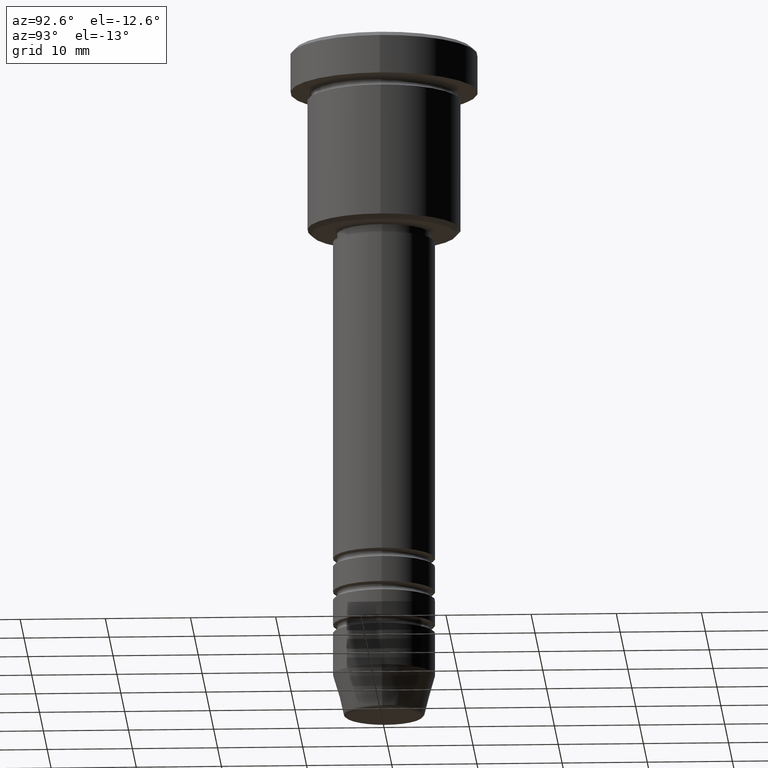
[diagram: clean part render]
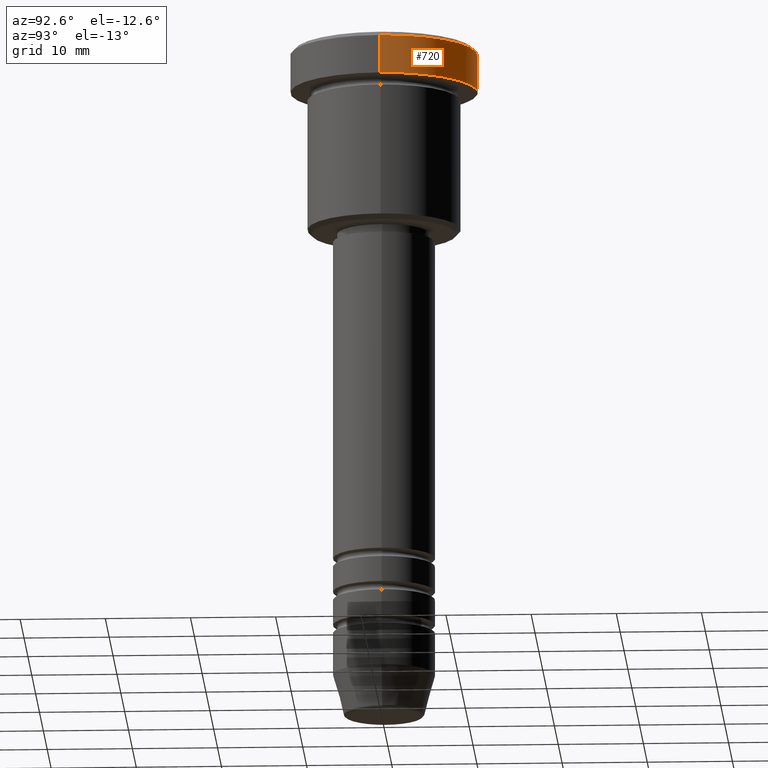
[diagram: same view with one face highlighted and labeled with its STEP entity id]
A machine part, auxiliary view. The second image highlights one B-rep face of the part: STEP entity #720.
In plain terms, the highlighted cylindrical surface (partial cylindrical patch) has radius 11 mm, axis along (-0, -0, 1).
Its self-contained STEP definition (entity closure, byte-faithful):
#32 = EDGE_CURVE ( 'NONE', #889, #858, #230, .T. ) ;
#89 = ORIENTED_EDGE ( 'NONE', *, *, #1146, .F. ) ;
#114 = LINE ( 'NONE', #407, #1121 ) ;
#126 = DIRECTION ( 'NONE',  ( 1.000000000000000000, 0.000000000000000000, 0.000000000000000000 ) ) ;
#150 = ORIENTED_EDGE ( 'NONE', *, *, #740, .T. ) ;
#165 = DIRECTION ( 'NONE',  ( 1.000000000000000000, 0.000000000000000000, 0.000000000000000000 ) ) ;
#230 = CIRCLE ( 'NONE', #1066, 11.00000000000000000 ) ;
#231 = VERTEX_POINT ( 'NONE', #944 ) ;
#237 = EDGE_LOOP ( 'NONE', ( #257, #150, #443, #89 ) ) ;
#240 = CARTESIAN_POINT ( 'NONE',  ( -11.00000000000000000, 1.347111479062088602E-15, -5.000000000000000000 ) ) ;
#257 = ORIENTED_EDGE ( 'NONE', *, *, #32, .T. ) ;
#260 = DIRECTION ( 'NONE',  ( -0.000000000000000000, -0.000000000000000000, 1.000000000000000000 ) ) ;
#271 = AXIS2_PLACEMENT_3D ( 'NONE', #716, #337, #1145 ) ;
#315 = CARTESIAN_POINT ( 'NONE',  ( -11.00000000000000178, 1.347111479062088602E-15, 0.000000000000000000 ) ) ;
#332 = VECTOR ( 'NONE', #583, 1000.000000000000000 ) ;
#337 = DIRECTION ( 'NONE',  ( 0.000000000000000000, 0.000000000000000000, -1.000000000000000000 ) ) ;
#364 = EDGE_CURVE ( 'NONE', #1040, #231, #477, .T. ) ;
#407 = CARTESIAN_POINT ( 'NONE',  ( 11.00000000000000178, 0.000000000000000000, 0.000000000000000000 ) ) ;
#409 = DIRECTION ( 'NONE',  ( -0.000000000000000000, -0.000000000000000000, 1.000000000000000000 ) ) ;
#443 = ORIENTED_EDGE ( 'NONE', *, *, #364, .T. ) ;
#451 = CARTESIAN_POINT ( 'NONE',  ( -11.00000000000000178, 1.347111479062088602E-15, -0.5000000000000159872 ) ) ;
#477 = CIRCLE ( 'NONE', #271, 11.00000000000000178 ) ;
#583 = DIRECTION ( 'NONE',  ( -0.000000000000000000, -0.000000000000000000, 1.000000000000000000 ) ) ;
#705 = CARTESIAN_POINT ( 'NONE',  ( 11.00000000000000000, 0.000000000000000000, -5.000000000000000000 ) ) ;
#716 = CARTESIAN_POINT ( 'NONE',  ( 0.000000000000000000, 0.000000000000000000, -0.5000000000000159872 ) ) ;
#720 = ADVANCED_FACE ( 'NONE', ( #1035 ), #850, .T. ) ;
#740 = EDGE_CURVE ( 'NONE', #858, #1040, #846, .T. ) ;
#761 = DIRECTION ( 'NONE',  ( -0.000000000000000000, -0.000000000000000000, 1.000000000000000000 ) ) ;
#846 = LINE ( 'NONE', #315, #332 ) ;
#850 = CYLINDRICAL_SURFACE ( 'NONE', #1120, 11.00000000000000178 ) ;
#858 = VERTEX_POINT ( 'NONE', #240 ) ;
#889 = VERTEX_POINT ( 'NONE', #705 ) ;
#943 = CARTESIAN_POINT ( 'NONE',  ( 0.000000000000000000, 0.000000000000000000, 0.000000000000000000 ) ) ;
#944 = CARTESIAN_POINT ( 'NONE',  ( 11.00000000000000178, 0.000000000000000000, -0.5000000000000159872 ) ) ;
#1035 = FACE_OUTER_BOUND ( 'NONE', #237, .T. ) ;
#1040 = VERTEX_POINT ( 'NONE', #451 ) ;
#1066 = AXIS2_PLACEMENT_3D ( 'NONE', #1080, #260, #165 ) ;
#1080 = CARTESIAN_POINT ( 'NONE',  ( 0.000000000000000000, 0.000000000000000000, -5.000000000000000000 ) ) ;
#1120 = AXIS2_PLACEMENT_3D ( 'NONE', #943, #409, #126 ) ;
#1121 = VECTOR ( 'NONE', #761, 1000.000000000000000 ) ;
#1145 = DIRECTION ( 'NONE',  ( 1.000000000000000000, 0.000000000000000000, 0.000000000000000000 ) ) ;
#1146 = EDGE_CURVE ( 'NONE', #889, #231, #114, .T. ) ;